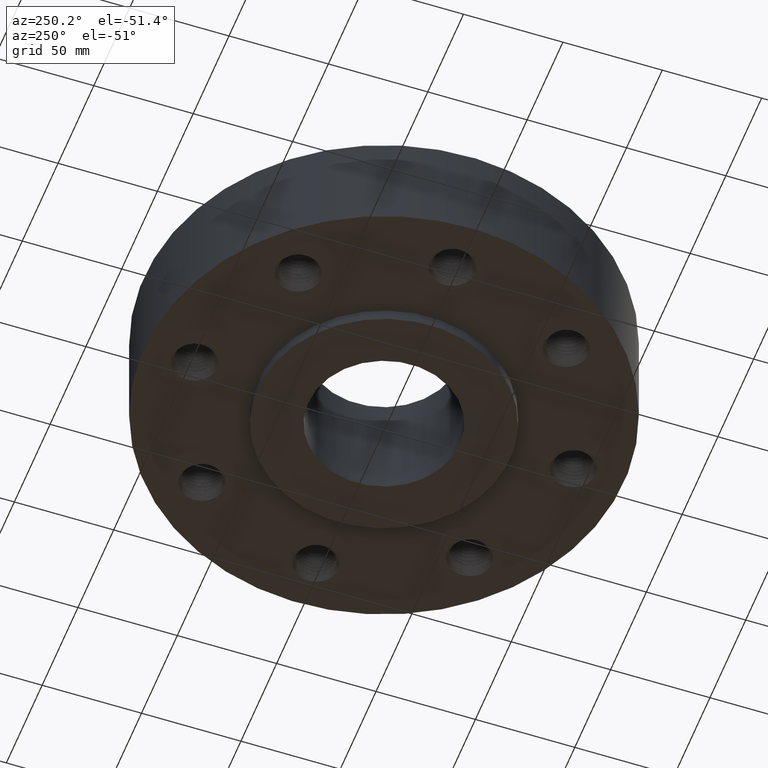
[diagram: clean part render]
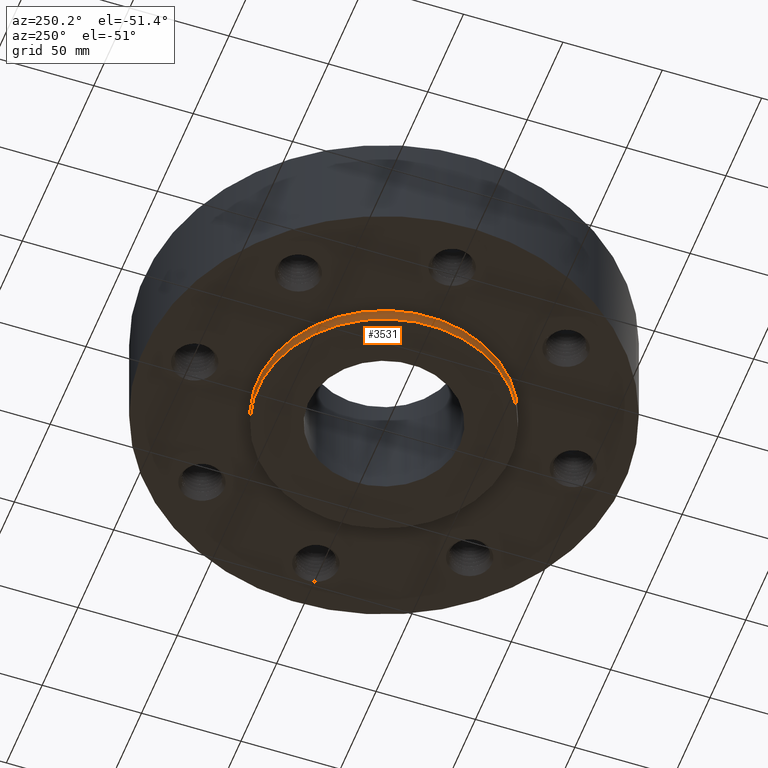
[diagram: same view with one face highlighted and labeled with its STEP entity id]
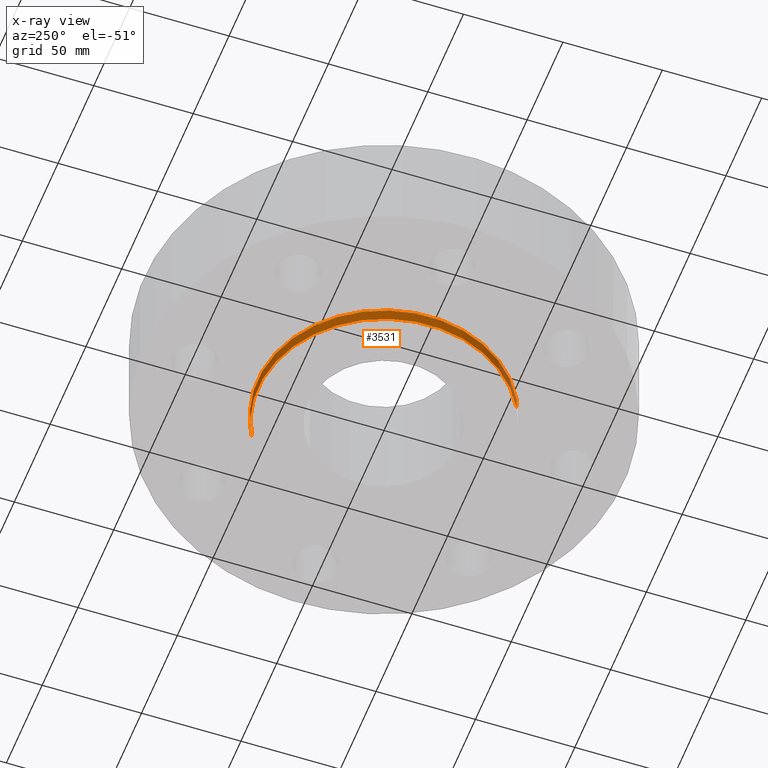
[diagram: x-ray of the same camera — body ghosted, the highlighted face saturated]
A machine part, auxiliary view. The second image highlights one B-rep face of the part: STEP entity #3531.
The next image is the same camera in x-ray: the body ghosted, the highlighted face saturated — about 0% of this face is hidden behind the body in this view.
In plain terms, the highlighted cylindrical surface (partial cylindrical patch) has radius 63.5 mm, axis along (0, 0, -1).
Its self-contained STEP definition (entity closure, byte-faithful):
#3312=AXIS2_PLACEMENT_3D('Circle Axis2P3D',#3310,#3311,$) ;
#3492=AXIS2_PLACEMENT_3D('Cylinder Axis2P3D',#3489,#3490,#3491) ;
#3522=AXIS2_PLACEMENT_3D('Circle Axis2P3D',#3520,#3521,$) ;
#3305=CARTESIAN_POINT('Vertex',(1.19856384652,2.19395640473,-2.82538646897E-014)) ;
#3307=CARTESIAN_POINT('Vertex',(-1.19856384652,-2.19395640473,-2.82538646897E-014)) ;
#3310=CARTESIAN_POINT('Axis2P3D Location',(0.,0.,0.)) ;
#3489=CARTESIAN_POINT('Axis2P3D Location',(0.,0.,0.935000000004)) ;
#3498=CARTESIAN_POINT('Vertex',(1.19856384652,2.19395640473,-0.250000000001)) ;
#3500=CARTESIAN_POINT('Vertex',(-1.19856384652,-2.19395640473,-0.250000000001)) ;
#3503=CARTESIAN_POINT('Line Origine',(1.19856384652,2.19395640473,-0.125000000001)) ;
#3508=CARTESIAN_POINT('Line Origine',(-1.19856384652,-2.19395640473,-0.125000000001)) ;
#3520=CARTESIAN_POINT('Axis2P3D Location',(0.,0.,-0.250000000001)) ;
#3311=DIRECTION('Axis2P3D Direction',(0.,0.,-0.0393700787402)) ;
#3490=DIRECTION('Axis2P3D Direction',(0.,0.,-0.0393700787402)) ;
#3491=DIRECTION('Axis2P3D XDirection',(-0.0188750212049,-0.0345504945626,0.)) ;
#3504=DIRECTION('Vector Direction',(0.,0.,-0.0393700787402)) ;
#3509=DIRECTION('Vector Direction',(0.,0.,-0.0393700787402)) ;
#3521=DIRECTION('Axis2P3D Direction',(0.,0.,-0.0393700787402)) ;
#3505=VECTOR('Line Direction',#3504,0.0393700787402) ;
#3510=VECTOR('Line Direction',#3509,0.0393700787402) ;
#3526=ORIENTED_EDGE('',*,*,#3524,.F.) ;
#3527=ORIENTED_EDGE('',*,*,#3512,.T.) ;
#3528=ORIENTED_EDGE('',*,*,#3314,.T.) ;
#3529=ORIENTED_EDGE('',*,*,#3507,.F.) ;
#3531=ADVANCED_FACE('PartBody',(#3530),#3493,.T.) ;
#3313=CIRCLE('generated circle',#3312,2.50000000001) ;
#3523=CIRCLE('generated circle',#3522,2.50000000001) ;
#3493=CYLINDRICAL_SURFACE('generated cylinder',#3492,2.50000000001) ;
#3314=EDGE_CURVE('',#3308,#3306,#3313,.T.) ;
#3507=EDGE_CURVE('',#3499,#3306,#3506,.F.) ;
#3512=EDGE_CURVE('',#3501,#3308,#3511,.F.) ;
#3524=EDGE_CURVE('',#3501,#3499,#3523,.T.) ;
#3525=EDGE_LOOP('',(#3526,#3527,#3528,#3529)) ;
#3530=FACE_OUTER_BOUND('',#3525,.T.) ;
#3506=LINE('Line',#3503,#3505) ;
#3511=LINE('Line',#3508,#3510) ;
#3306=VERTEX_POINT('',#3305) ;
#3308=VERTEX_POINT('',#3307) ;
#3499=VERTEX_POINT('',#3498) ;
#3501=VERTEX_POINT('',#3500) ;